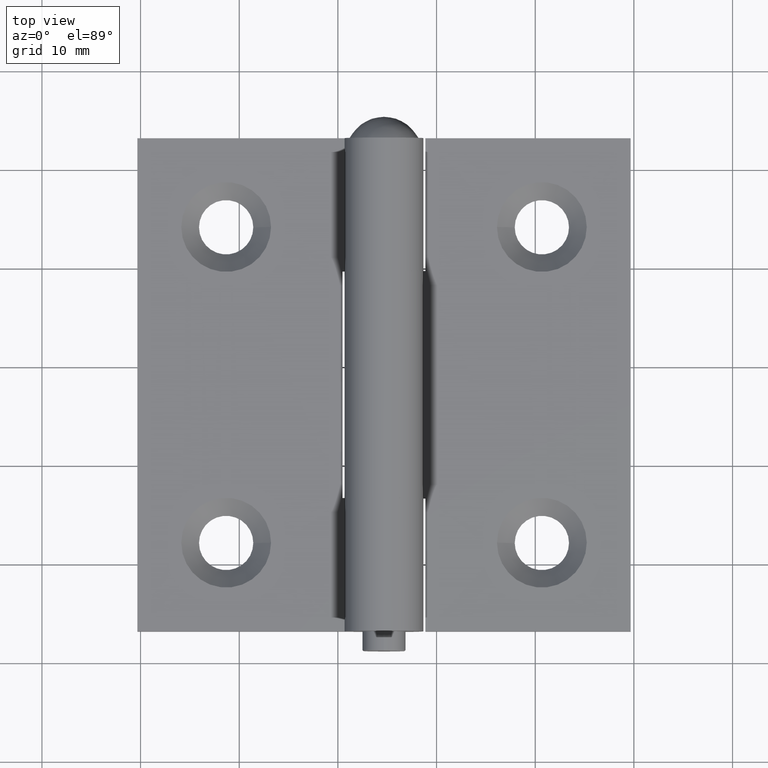
[diagram: clean part render]
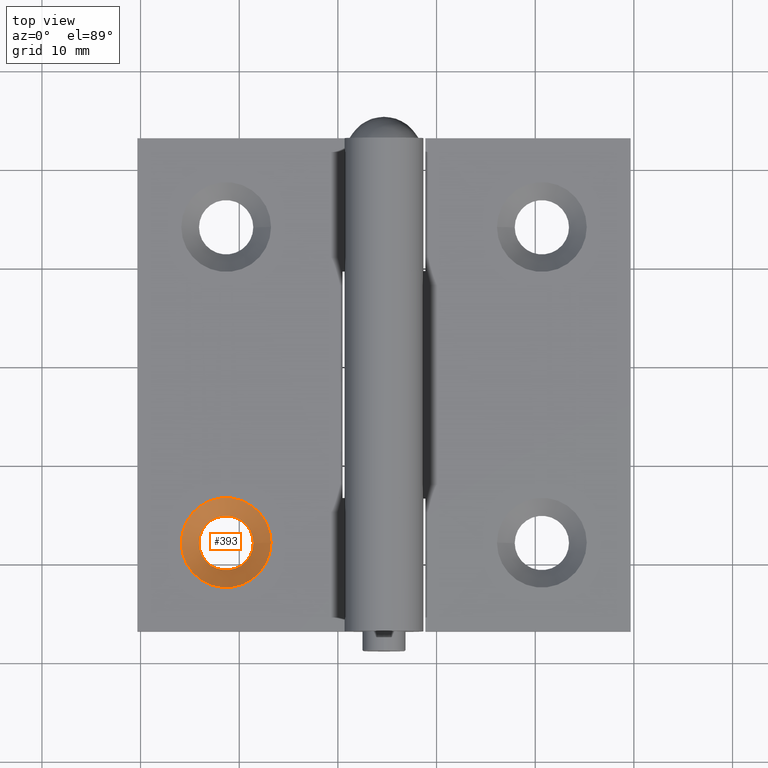
[diagram: same view with one face highlighted and labeled with its STEP entity id]
A machine part, top view. The second image highlights one B-rep face of the part: STEP entity #393.
In plain terms, the highlighted conical surface has half-angle 45 deg.
Its self-contained STEP definition (entity closure, byte-faithful):
#315 = EDGE_CURVE ( 'NONE', #10197, #10197, #6631, .T. ) ;
#393 = ADVANCED_FACE ( 'NONE', ( #8618, #3740 ), #11500, .F. ) ;
#802 = DIRECTION ( 'NONE',  ( 1.000000000000000000, 0.000000000000000000, 0.000000000000000000 ) ) ;
#1178 = DIRECTION ( 'NONE',  ( 0.000000000000000000, 0.000000000000000000, -1.000000000000000000 ) ) ;
#1751 = CARTESIAN_POINT ( 'NONE',  ( -20.55000000000000071, -16.00000000000000355, -0.4000000000000001887 ) ) ;
#1768 = ORIENTED_EDGE ( 'NONE', *, *, #315, .F. ) ;
#3192 = CARTESIAN_POINT ( 'NONE',  ( -16.00000000000000355, -16.00000000000000355, -2.199999999999989075 ) ) ;
#3268 = CIRCLE ( 'NONE', #9812, 2.749999999999999112 ) ;
#3638 = DIRECTION ( 'NONE',  ( 0.000000000000000000, 0.000000000000000000, 1.000000000000000000 ) ) ;
#3740 = FACE_BOUND ( 'NONE', #7049, .T. ) ;
#4893 = AXIS2_PLACEMENT_3D ( 'NONE', #10391, #1178, #8507 ) ;
#4895 = VERTEX_POINT ( 'NONE', #8970 ) ;
#4927 = EDGE_LOOP ( 'NONE', ( #1768 ) ) ;
#4993 = DIRECTION ( 'NONE',  ( 0.000000000000000000, 0.000000000000000000, 1.000000000000000000 ) ) ;
#5381 = ORIENTED_EDGE ( 'NONE', *, *, #6465, .F. ) ;
#6250 = CARTESIAN_POINT ( 'NONE',  ( -16.00000000000000355, -16.00000000000000355, -2.200000000000000178 ) ) ;
#6465 = EDGE_CURVE ( 'NONE', #4895, #4895, #3268, .T. ) ;
#6631 = CIRCLE ( 'NONE', #4893, 4.549999999999998934 ) ;
#7049 = EDGE_LOOP ( 'NONE', ( #5381 ) ) ;
#7733 = DIRECTION ( 'NONE',  ( 1.000000000000000000, 0.000000000000000000, 0.000000000000000000 ) ) ;
#8507 = DIRECTION ( 'NONE',  ( -1.000000000000000000, 0.000000000000000000, 0.000000000000000000 ) ) ;
#8618 = FACE_OUTER_BOUND ( 'NONE', #4927, .T. ) ;
#8745 = AXIS2_PLACEMENT_3D ( 'NONE', #3192, #4993, #7733 ) ;
#8970 = CARTESIAN_POINT ( 'NONE',  ( -13.25000000000000533, -16.00000000000000355, -2.200000000000000178 ) ) ;
#9812 = AXIS2_PLACEMENT_3D ( 'NONE', #6250, #3638, #802 ) ;
#10197 = VERTEX_POINT ( 'NONE', #1751 ) ;
#10391 = CARTESIAN_POINT ( 'NONE',  ( -16.00000000000000355, -16.00000000000000355, -0.4000000000000001887 ) ) ;
#11500 = CONICAL_SURFACE ( 'NONE', #8745, 2.749999999999999112, 0.7853981633974514986 ) ;